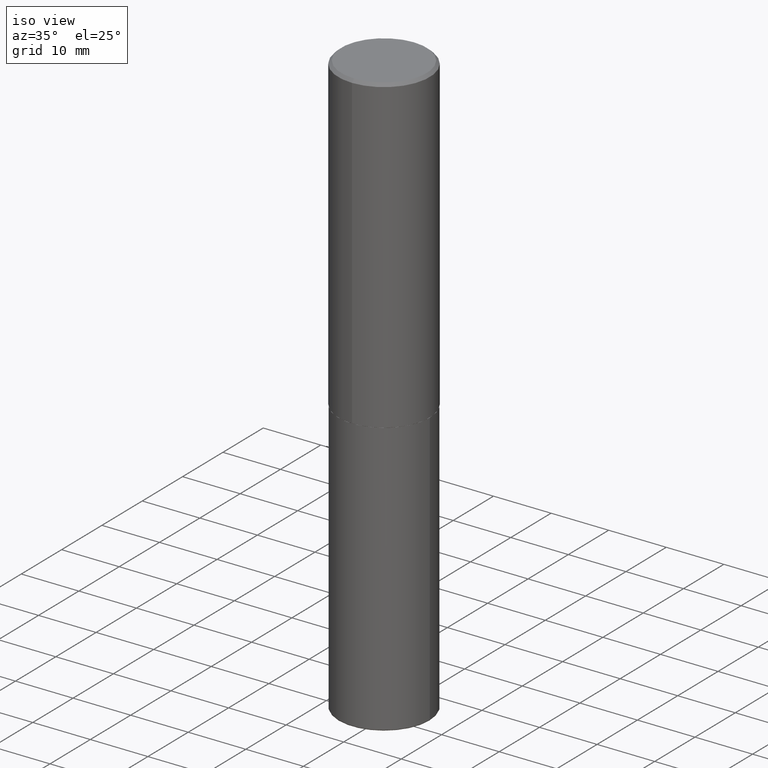
[diagram: clean part render]
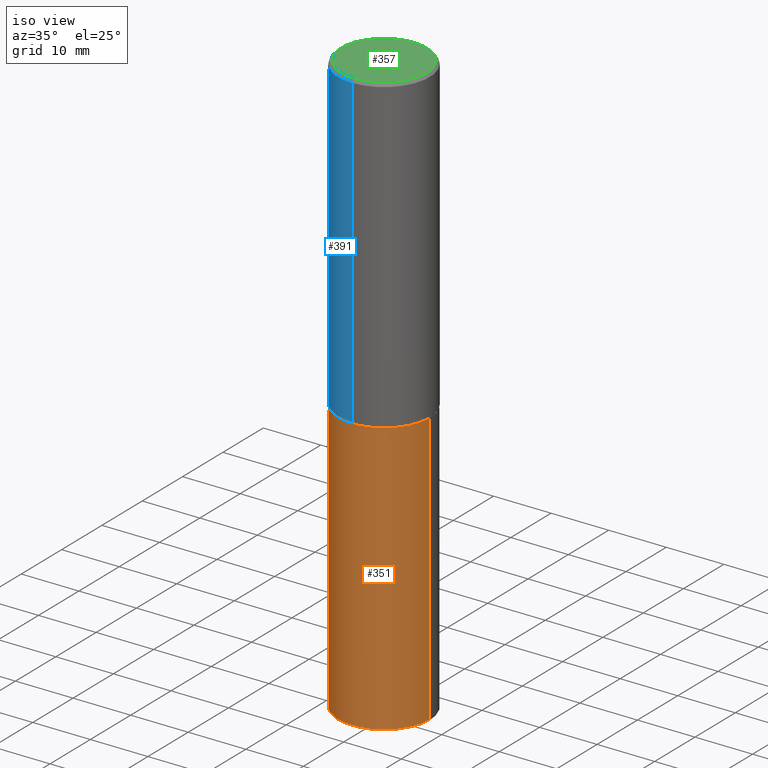
[diagram: same view with three faces highlighted in distinct colors, each labeled with its STEP entity id]
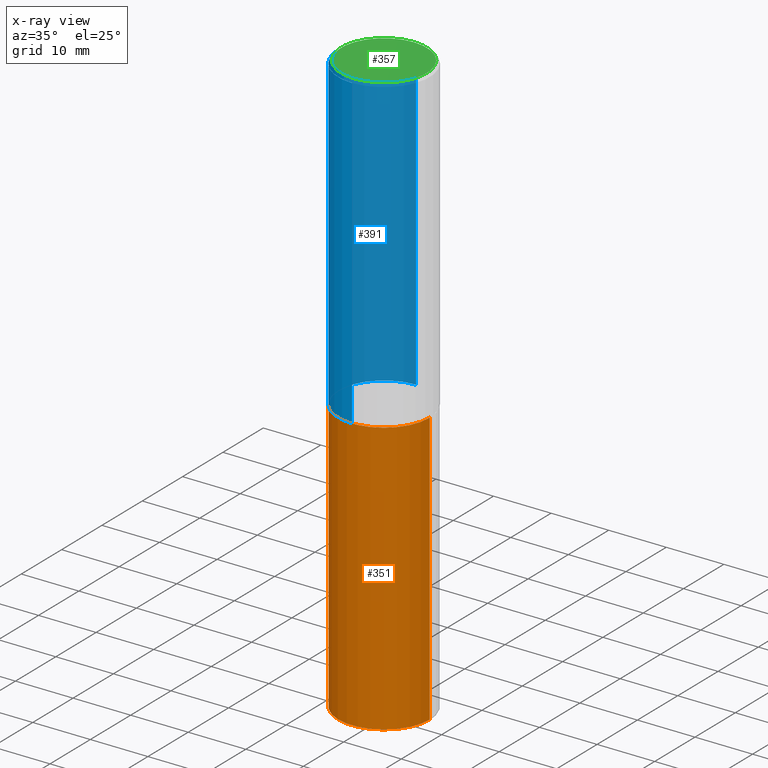
[diagram: x-ray of the same camera — body ghosted, the three highlighted faces saturated]
A machine part, iso view with three faces highlighted in distinct colors.
The next image is the same camera in x-ray (body ghosted, the three faces saturated) — at least one of them is partly hidden behind the body in this view.
Their STEP definitions:

[orange] entity #351 — the highlighted cylindrical surface (partial cylindrical patch) has radius 7.9375 mm, axis along (-0, 0, 1).
#6 = EDGE_CURVE ( 'NONE', #314, #68, #126, .T. ) ;
#15 = AXIS2_PLACEMENT_3D ( 'NONE', #305, #44, #166 ) ;
#37 = VECTOR ( 'NONE', #215, 39.37007874015748143 ) ;
#44 = DIRECTION ( 'NONE',  ( -2.445468806185136597E-29, 3.491481338843145583E-15, 1.000000000000000000 ) ) ;
#45 = CARTESIAN_POINT ( 'NONE',  ( 9.757420536678694842E-29, -1.393101054198414910E-14, -3.989999999999999769 ) ) ;
#47 = DIRECTION ( 'NONE',  ( 1.000000000000000000, -6.982962677686268288E-15, 0.000000000000000000 ) ) ;
#68 = VERTEX_POINT ( 'NONE', #94 ) ;
#78 = DIRECTION ( 'NONE',  ( -2.445468806185136597E-29, 3.491481338843145583E-15, 1.000000000000000000 ) ) ;
#94 = CARTESIAN_POINT ( 'NONE',  ( -0.3125000000000000000, -8.454758144262601705E-15, -2.124999999999999556 ) ) ;
#100 = CIRCLE ( 'NONE', #249, 0.3125000000000000555 ) ;
#107 = CARTESIAN_POINT ( 'NONE',  ( 0.3125000000000000000, -1.611318637876110745E-14, -3.989999999999999769 ) ) ;
#109 = DIRECTION ( 'NONE',  ( -2.445468806185136877E-29, 3.491481338843145188E-15, 1.000000000000000000 ) ) ;
#123 = AXIS2_PLACEMENT_3D ( 'NONE', #337, #78, #306 ) ;
#126 = LINE ( 'NONE', #343, #37 ) ;
#142 = VERTEX_POINT ( 'NONE', #107 ) ;
#161 = EDGE_CURVE ( 'NONE', #314, #142, #100, .T. ) ;
#163 = ORIENTED_EDGE ( 'NONE', *, *, #6, .F. ) ;
#165 = VECTOR ( 'NONE', #109, 39.37007874015748143 ) ;
#166 = DIRECTION ( 'NONE',  ( 1.000000000000000000, -6.982962677686266711E-15, 4.876176775795936353E-29 ) ) ;
#173 = CARTESIAN_POINT ( 'NONE',  ( -0.3125000000000000000, -1.171056449273383602E-14, -3.989999999999999769 ) ) ;
#180 = CYLINDRICAL_SURFACE ( 'NONE', #15, 0.3125000000000000000 ) ;
#215 = DIRECTION ( 'NONE',  ( -2.445468806185136877E-29, 3.491481338843145188E-15, 1.000000000000000000 ) ) ;
#218 = ORIENTED_EDGE ( 'NONE', *, *, #222, .F. ) ;
#222 = EDGE_CURVE ( 'NONE', #68, #267, #364, .T. ) ;
#225 = ORIENTED_EDGE ( 'NONE', *, *, #308, .T. ) ;
#249 = AXIS2_PLACEMENT_3D ( 'NONE', #45, #330, #47 ) ;
#263 = LINE ( 'NONE', #302, #165 ) ;
#267 = VERTEX_POINT ( 'NONE', #381 ) ;
#275 = ORIENTED_EDGE ( 'NONE', *, *, #161, .T. ) ;
#302 = CARTESIAN_POINT ( 'NONE',  ( 0.3125000000000000000, -2.182175836776958347E-15, 1.523805242436230075E-29 ) ) ;
#305 = CARTESIAN_POINT ( 'NONE',  ( 0.000000000000000000, 0.000000000000000000, 0.000000000000000000 ) ) ;
#306 = DIRECTION ( 'NONE',  ( 1.000000000000000000, -6.982962677686265133E-15, 0.000000000000000000 ) ) ;
#308 = EDGE_CURVE ( 'NONE', #142, #267, #263, .T. ) ;
#314 = VERTEX_POINT ( 'NONE', #173 ) ;
#324 = EDGE_LOOP ( 'NONE', ( #163, #275, #225, #218 ) ) ;
#330 = DIRECTION ( 'NONE',  ( -2.445468806185136597E-29, 3.491481338843145583E-15, 1.000000000000000000 ) ) ;
#331 = FACE_OUTER_BOUND ( 'NONE', #324, .T. ) ;
#337 = CARTESIAN_POINT ( 'NONE',  ( 5.196621213143414147E-29, -7.419397845041682046E-15, -2.124999999999999556 ) ) ;
#343 = CARTESIAN_POINT ( 'NONE',  ( -0.3125000000000000000, 2.220446049250313081E-15, -1.537167215704658232E-29 ) ) ;
#351 = ADVANCED_FACE ( 'NONE', ( #331 ), #180, .T. ) ;
#364 = CIRCLE ( 'NONE', #123, 0.3125000000000000000 ) ;
#381 = CARTESIAN_POINT ( 'NONE',  ( 0.3125000000000000000, -9.601573681818640393E-15, -2.124999999999999556 ) ) ;

[blue] entity #391 — the highlighted cylindrical surface (partial cylindrical patch) has radius 7.9375 mm, axis along (-0, 0, 1).
#8 = AXIS2_PLACEMENT_3D ( 'NONE', #133, #207, #143 ) ;
#21 = DIRECTION ( 'NONE',  ( -2.444852431726452894E-29, 3.492364022149836358E-15, 1.000000000000000000 ) ) ;
#34 = ORIENTED_EDGE ( 'NONE', *, *, #170, .F. ) ;
#41 = EDGE_LOOP ( 'NONE', ( #200, #211, #198, #34 ) ) ;
#43 = AXIS2_PLACEMENT_3D ( 'NONE', #270, #21, #138 ) ;
#49 = VECTOR ( 'NONE', #298, 39.37007874015748143 ) ;
#75 = AXIS2_PLACEMENT_3D ( 'NONE', #412, #241, #212 ) ;
#99 = VERTEX_POINT ( 'NONE', #247 ) ;
#104 = VERTEX_POINT ( 'NONE', #312 ) ;
#105 = CARTESIAN_POINT ( 'NONE',  ( 2.220446049250340297E-15, 0.3124999999999928391, -2.124000000000000554 ) ) ;
#131 = VECTOR ( 'NONE', #375, 39.37007874015748143 ) ;
#133 = CARTESIAN_POINT ( 'NONE',  ( 0.000000000000000000, 0.000000000000000000, 0.000000000000000000 ) ) ;
#137 = CYLINDRICAL_SURFACE ( 'NONE', #8, 0.3125000000000001665 ) ;
#138 = DIRECTION ( 'NONE',  ( -6.982962677686265922E-15, -1.000000000000000000, 3.496765431890253764E-15 ) ) ;
#143 = DIRECTION ( 'NONE',  ( -6.982962677686265133E-15, -1.000000000000000000, 3.492364022149836358E-15 ) ) ;
#147 = VERTEX_POINT ( 'NONE', #230 ) ;
#170 = EDGE_CURVE ( 'NONE', #147, #104, #172, .T. ) ;
#172 = CIRCLE ( 'NONE', #75, 0.3125000000000000000 ) ;
#198 = ORIENTED_EDGE ( 'NONE', *, *, #328, .T. ) ;
#200 = ORIENTED_EDGE ( 'NONE', *, *, #315, .F. ) ;
#207 = DIRECTION ( 'NONE',  ( -2.444852431726452894E-29, 3.492364022149836358E-15, 1.000000000000000000 ) ) ;
#211 = ORIENTED_EDGE ( 'NONE', *, *, #320, .T. ) ;
#212 = DIRECTION ( 'NONE',  ( -6.982962677686265133E-15, -1.000000000000000000, 3.496765431890256920E-15 ) ) ;
#221 = CIRCLE ( 'NONE', #43, 0.3125000000000002776 ) ;
#230 = CARTESIAN_POINT ( 'NONE',  ( 2.182175836776958741E-15, 0.3124999999999999445, -0.02000000000000116268 ) ) ;
#234 = LINE ( 'NONE', #370, #49 ) ;
#241 = DIRECTION ( 'NONE',  ( -2.444852431726452894E-29, 3.492364022149836358E-15, 1.000000000000000000 ) ) ;
#247 = CARTESIAN_POINT ( 'NONE',  ( -2.182175836776908254E-15, -0.3125000000000077161, -2.123999999999998334 ) ) ;
#270 = CARTESIAN_POINT ( 'NONE',  ( 5.192866564986985411E-29, -7.417781183046251262E-15, -2.123999999999999666 ) ) ;
#298 = DIRECTION ( 'NONE',  ( -2.444852431726452614E-29, 3.492364022149836358E-15, 1.000000000000000000 ) ) ;
#312 = CARTESIAN_POINT ( 'NONE',  ( -2.143905624303602824E-15, -0.3125000000000000555, -0.01999999999999897693 ) ) ;
#315 = EDGE_CURVE ( 'NONE', #348, #147, #234, .T. ) ;
#320 = EDGE_CURVE ( 'NONE', #348, #99, #221, .T. ) ;
#328 = EDGE_CURVE ( 'NONE', #99, #104, #406, .T. ) ;
#341 = CARTESIAN_POINT ( 'NONE',  ( -2.182175836776959136E-15, -0.3125000000000001665, 1.091363756921824478E-15 ) ) ;
#348 = VERTEX_POINT ( 'NONE', #105 ) ;
#370 = CARTESIAN_POINT ( 'NONE',  ( 2.220446049250313475E-15, 0.3125000000000001665, -1.091363756921824478E-15 ) ) ;
#371 = FACE_OUTER_BOUND ( 'NONE', #41, .T. ) ;
#375 = DIRECTION ( 'NONE',  ( -2.444852431726452614E-29, 3.492364022149836358E-15, 1.000000000000000000 ) ) ;
#391 = ADVANCED_FACE ( 'NONE', ( #371 ), #137, .T. ) ;
#406 = LINE ( 'NONE', #341, #131 ) ;
#412 = CARTESIAN_POINT ( 'NONE',  ( 4.889704863452922148E-31, -6.984728044299695791E-17, -0.02000000000000006981 ) ) ;

[green] entity #357 — the highlighted planar face has unit normal (0, -0, -1).
#16 = CARTESIAN_POINT ( 'NONE',  ( -2.075300644325887493E-15, -0.2924999999999999822, 1.030311686326234990E-15 ) ) ;
#25 = EDGE_LOOP ( 'NONE', ( #238, #58 ) ) ;
#51 = DIRECTION ( 'NONE',  ( 6.982962677686265922E-15, 1.000000000000000000, -3.492364022149836358E-15 ) ) ;
#58 = ORIENTED_EDGE ( 'NONE', *, *, #88, .T. ) ;
#59 = CARTESIAN_POINT ( 'NONE',  ( -2.150299018297948745E-46, 3.071607443834507134E-32, 8.795209847407834549E-18 ) ) ;
#88 = EDGE_CURVE ( 'NONE', #373, #299, #96, .T. ) ;
#93 = EDGE_CURVE ( 'NONE', #299, #373, #240, .T. ) ;
#96 = CIRCLE ( 'NONE', #115, 0.2924999999999999822 ) ;
#113 = DIRECTION ( 'NONE',  ( 2.444852431726452333E-29, -3.492364022149836358E-15, -1.000000000000000000 ) ) ;
#115 = AXIS2_PLACEMENT_3D ( 'NONE', #119, #246, #382 ) ;
#119 = CARTESIAN_POINT ( 'NONE',  ( -2.150299018297948745E-46, 3.071607443834507134E-32, 8.795209847407834549E-18 ) ) ;
#185 = DIRECTION ( 'NONE',  ( -2.444852431726452894E-29, 3.492364022149836358E-15, 1.000000000000000000 ) ) ;
#202 = AXIS2_PLACEMENT_3D ( 'NONE', #59, #185, #309 ) ;
#238 = ORIENTED_EDGE ( 'NONE', *, *, #93, .T. ) ;
#240 = CIRCLE ( 'NONE', #202, 0.2924999999999999822 ) ;
#246 = DIRECTION ( 'NONE',  ( -2.444852431726452894E-29, 3.492364022149836358E-15, 1.000000000000000000 ) ) ;
#299 = VERTEX_POINT ( 'NONE', #399 ) ;
#309 = DIRECTION ( 'NONE',  ( -6.982962677686265133E-15, -1.000000000000000000, 3.492364022149836753E-15 ) ) ;
#336 = FACE_OUTER_BOUND ( 'NONE', #25, .T. ) ;
#339 = AXIS2_PLACEMENT_3D ( 'NONE', #365, #113, #51 ) ;
#357 = ADVANCED_FACE ( 'NONE', ( #336 ), #404, .F. ) ;
#365 = CARTESIAN_POINT ( 'NONE',  ( 2.042516583223232540E-15, 0.2924999999999999822, -1.017118871555123169E-15 ) ) ;
#373 = VERTEX_POINT ( 'NONE', #16 ) ;
#382 = DIRECTION ( 'NONE',  ( -6.982962677686265133E-15, -1.000000000000000000, 3.492364022149836753E-15 ) ) ;
#399 = CARTESIAN_POINT ( 'NONE',  ( 2.112346210000095838E-15, 0.2924999999999999822, -1.012721266631419361E-15 ) ) ;
#404 = PLANE ( 'NONE',  #339 ) ;